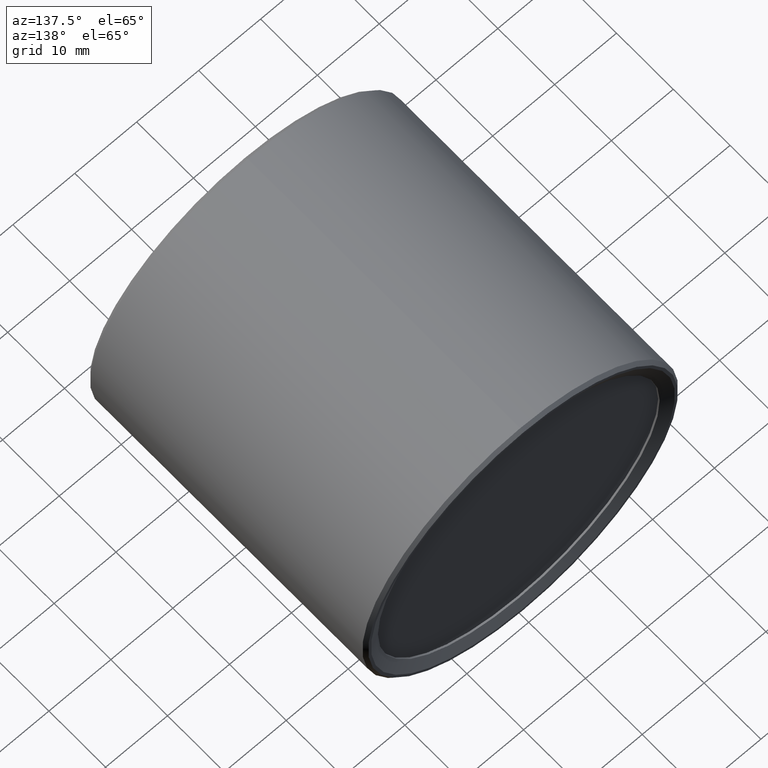
[diagram: clean part render]
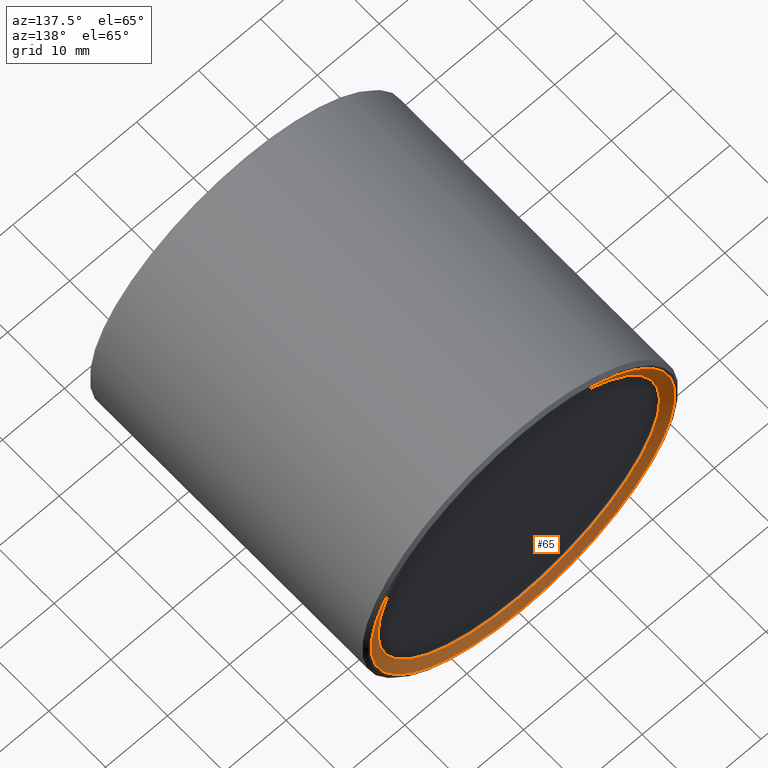
[diagram: same view with one face highlighted and labeled with its STEP entity id]
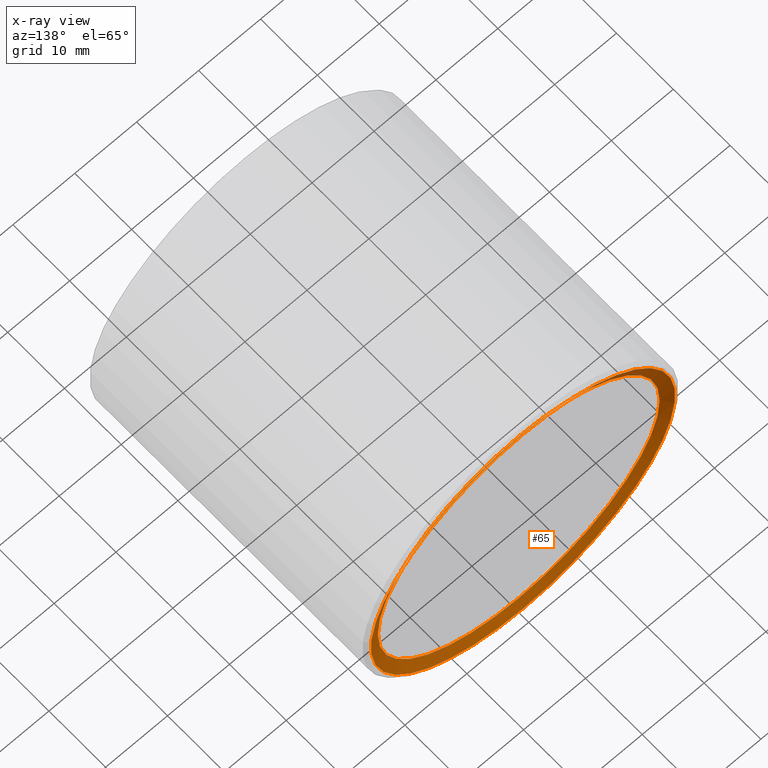
[diagram: x-ray of the same camera — body ghosted, the highlighted face saturated]
A machine part, auxiliary view. The second image highlights one B-rep face of the part: STEP entity #65.
The next image is the same camera in x-ray: the body ghosted, the highlighted face saturated — about 0% of this face is hidden behind the body in this view.
In plain terms, the highlighted conical surface has half-angle 67.568 deg.
Its self-contained STEP definition (entity closure, byte-faithful):
#2 = EDGE_CURVE ( 'NONE', #170, #170, #212, .T. ) ;
#23 = CARTESIAN_POINT ( 'NONE',  ( 0.000000000000000000, 48.25597280529908062, 22.75000000000000711 ) ) ;
#27 = DIRECTION ( 'NONE',  ( -0.000000000000000000, 1.000000000000000000, -0.000000000000000000 ) ) ;
#65 = ADVANCED_FACE ( 'NONE', ( #130, #373 ), #345, .F. ) ;
#73 = DIRECTION ( 'NONE',  ( 0.000000000000000000, 0.000000000000000000, 1.000000000000000000 ) ) ;
#75 = DIRECTION ( 'NONE',  ( 0.000000000000000000, -1.000000000000000000, 0.000000000000000000 ) ) ;
#130 = FACE_OUTER_BOUND ( 'NONE', #327, .T. ) ;
#161 = ORIENTED_EDGE ( 'NONE', *, *, #326, .T. ) ;
#170 = VERTEX_POINT ( 'NONE', #23 ) ;
#212 = CIRCLE ( 'NONE', #320, 22.75000000000000711 ) ;
#240 = EDGE_LOOP ( 'NONE', ( #298 ) ) ;
#259 = CARTESIAN_POINT ( 'NONE',  ( 0.000000000000000000, 49.00000000000000000, 24.55226501531731387 ) ) ;
#277 = CIRCLE ( 'NONE', #314, 24.55226501531731387 ) ;
#289 = CARTESIAN_POINT ( 'NONE',  ( 0.000000000000000000, 48.20798920880806548, 0.000000000000000000 ) ) ;
#298 = ORIENTED_EDGE ( 'NONE', *, *, #2, .T. ) ;
#313 = AXIS2_PLACEMENT_3D ( 'NONE', #289, #315, #73 ) ;
#314 = AXIS2_PLACEMENT_3D ( 'NONE', #349, #27, #343 ) ;
#315 = DIRECTION ( 'NONE',  ( -0.000000000000000000, 1.000000000000000000, -0.000000000000000000 ) ) ;
#317 = DIRECTION ( 'NONE',  ( 0.000000000000000000, 0.000000000000000000, 1.000000000000000000 ) ) ;
#320 = AXIS2_PLACEMENT_3D ( 'NONE', #363, #75, #317 ) ;
#326 = EDGE_CURVE ( 'NONE', #374, #374, #277, .T. ) ;
#327 = EDGE_LOOP ( 'NONE', ( #161 ) ) ;
#343 = DIRECTION ( 'NONE',  ( 0.000000000000000000, 0.000000000000000000, 1.000000000000000000 ) ) ;
#345 = CONICAL_SURFACE ( 'NONE', #313, 22.63376882205279372, 1.179279654102563191 ) ;
#349 = CARTESIAN_POINT ( 'NONE',  ( 0.000000000000000000, 49.00000000000000000, 0.000000000000000000 ) ) ;
#363 = CARTESIAN_POINT ( 'NONE',  ( 0.000000000000000000, 48.25597280529908062, 0.000000000000000000 ) ) ;
#373 = FACE_BOUND ( 'NONE', #240, .T. ) ;
#374 = VERTEX_POINT ( 'NONE', #259 ) ;